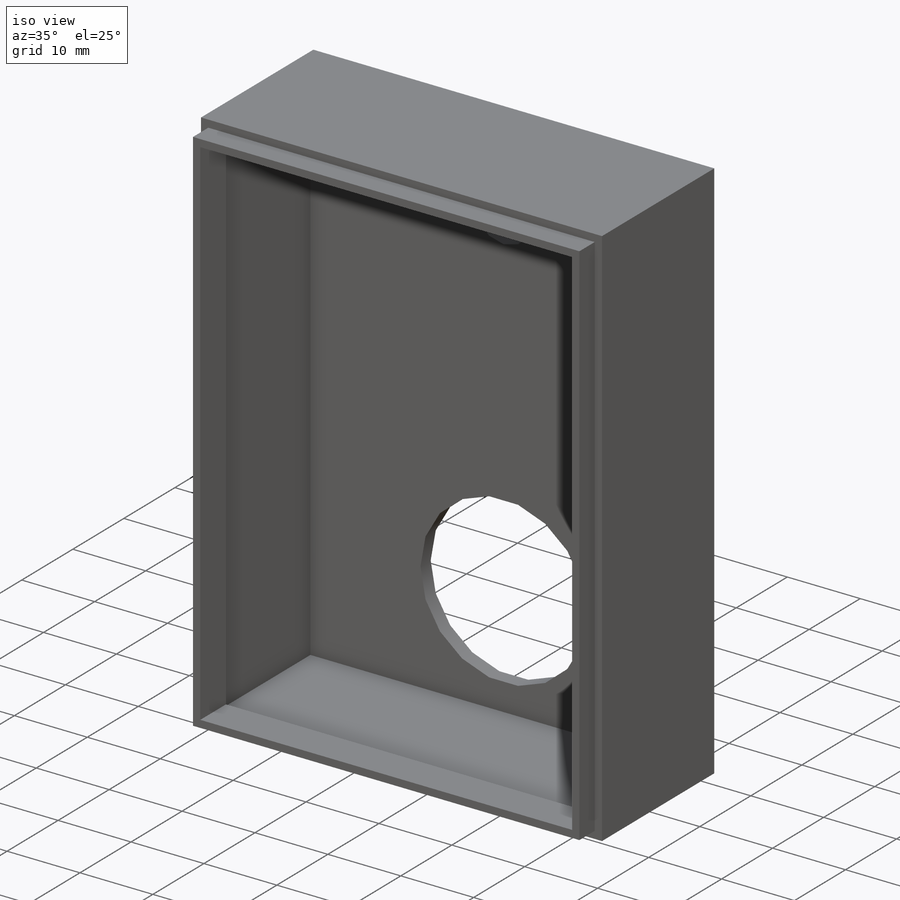
[diagram: iso view]
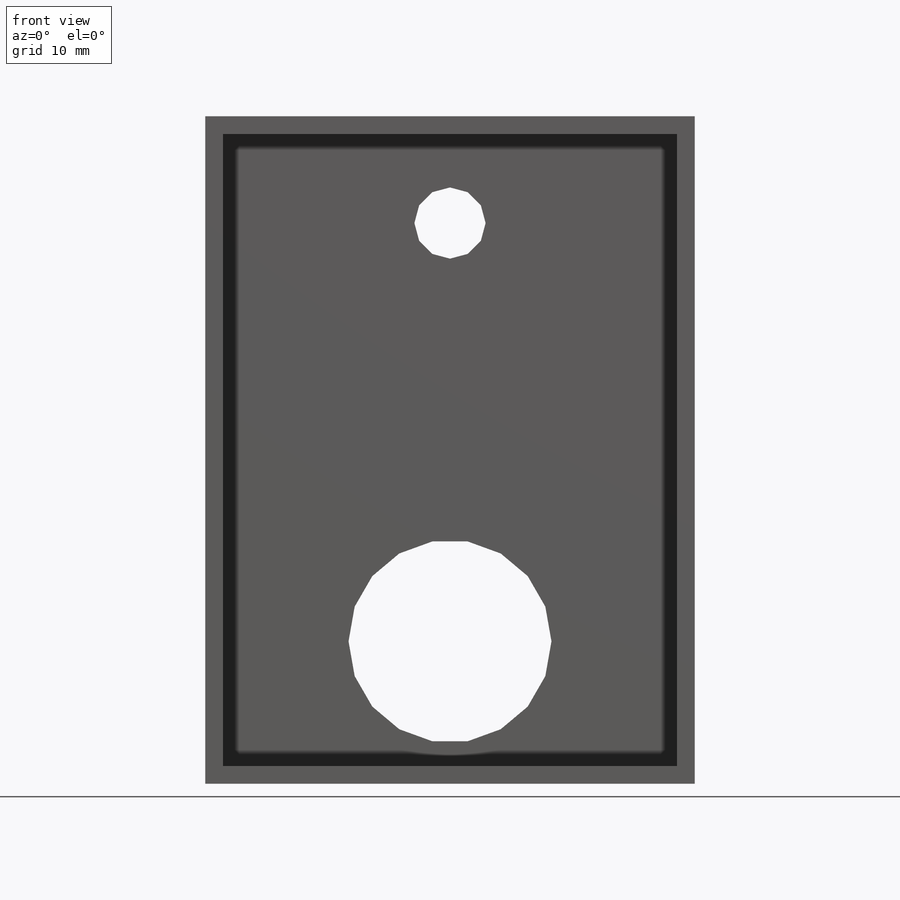
[diagram: front view]
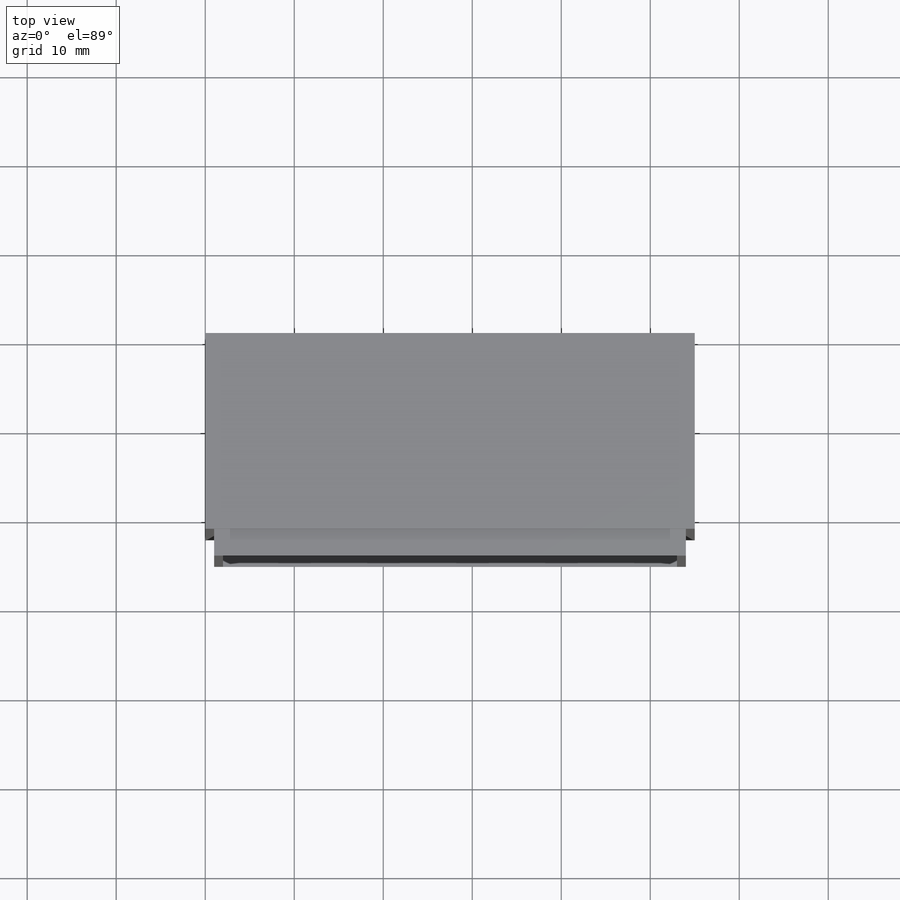
[diagram: top view]
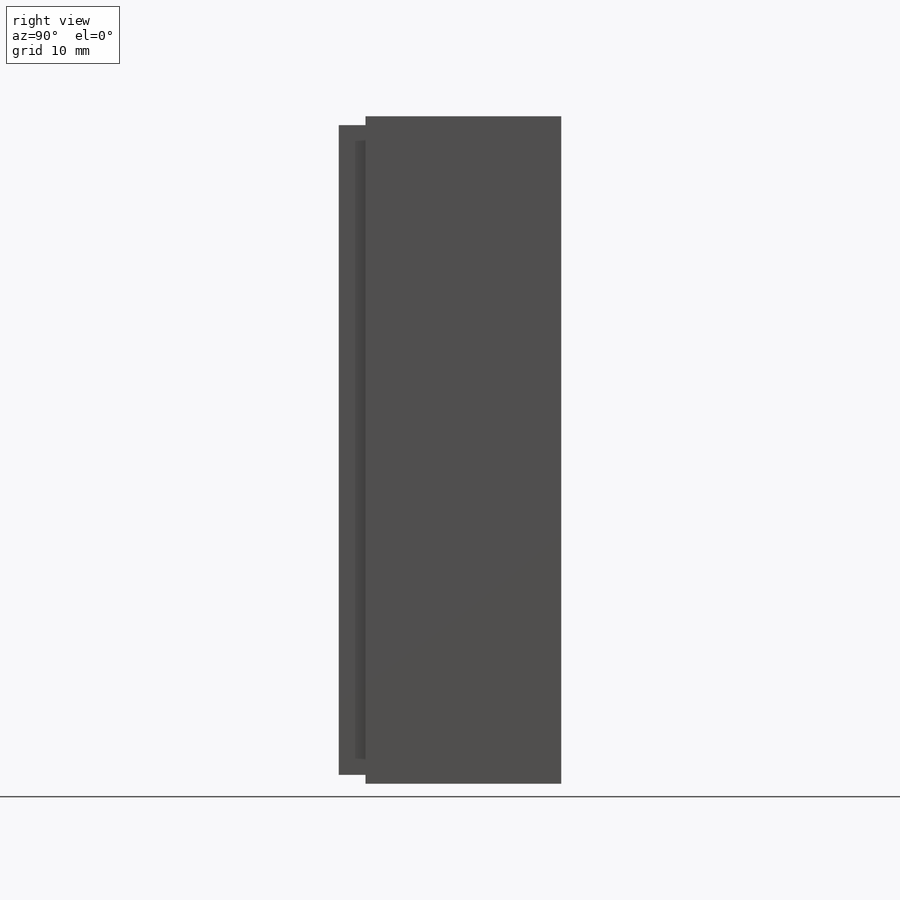
[diagram: right view]
SOLIDWORKS PART (.sldprt)
format: sldprt  version: not decoded by parser v0  size: 645,632 bytes
history: native  units: mm
features: material x4, extrude x3, plane x1, sketch x1, cut_extrude x1 + 1 further entry (+15 scaffold rows collapsed)
feature tree (26):
  scaffold x15  (default folders/planes/origin — collapsed)
  material  "PA Тип 6"
  material  "Эскиз2"
  material  "Эскиз3"
  material  "Эскиз4"
  plane  "Спереди"
  "Начало координат"
  sketch  "Эскиз1"  dims[c1.D3=3.5mm c1.D4=3.5mm c1.D5=4.5mm c1.D6=4.5mm c1.D7=4.5mm c1.D8=4.5mm c1.D9=3.5mm c1.D10=4.5mm c1.D11=4.5mm c1.D12=3.5mm c1.D13=3.5mm c1.D14=3.5mm c1.D1=55.0mm c1.D2=75.0mm c2.D5=5.0mm c2.D6=5.0mm c2.D7=5.0mm c2.D8=5.0mm c2.D10=5.0mm c2.D11=5.0mm c2.D13=5.0mm c2.D14=5.0mm]
  extrude  "Бобышка-Вытянуть1"  Depth=2mm
  extrude  "Бобышка-Вытянуть2"  Depth=20mm
  extrude  "Бобышка-Вытянуть3"  Depth=3mm
  cut_extrude  "Вырез-Вытянуть1"  Depth=3mm
decode coverage: 5 of 5 modeling features carry decoded parameters; 1 rows unclassified (native names shown)
note: suppression state not decoded; provenance and decode notes live in map.json
